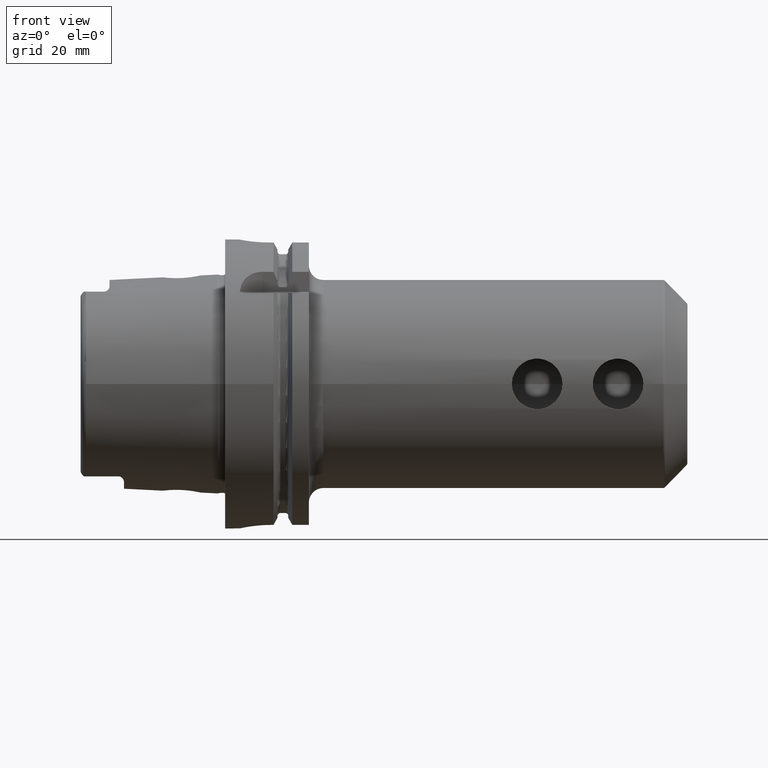
[diagram: clean part render]
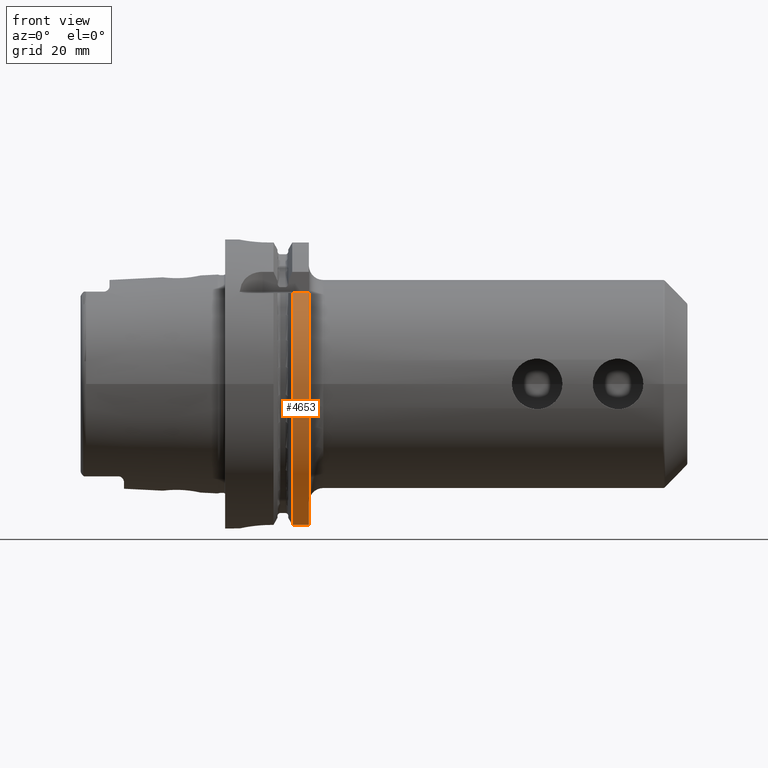
[diagram: same view with one face highlighted and labeled with its STEP entity id]
A machine part, front view. The second image highlights one B-rep face of the part: STEP entity #4653.
In plain terms, the highlighted cylindrical surface (partial cylindrical patch) has radius 50 mm, axis along (1, 0, 0).
Its self-contained STEP definition (entity closure, byte-faithful):
#1123=DIRECTION('',(1.E0,0.E0,0.E0));
#1124=VECTOR('',#1123,5.752404735808E0);
#1125=CARTESIAN_POINT('',(2.324759526419E1,-3.882975663071E1,3.15E1));
#1126=LINE('',#1125,#1124);
#1127=CARTESIAN_POINT('',(2.9E1,0.E0,0.E0));
#1128=DIRECTION('',(1.E0,0.E0,0.E0));
#1129=DIRECTION('',(0.E0,-7.765951326142E-1,6.3E-1));
#1130=AXIS2_PLACEMENT_3D('',#1127,#1128,#1129);
#1132=DIRECTION('',(1.E0,0.E0,0.E0));
#1133=VECTOR('',#1132,5.752404735808E0);
#1134=CARTESIAN_POINT('',(2.324759526419E1,-1.1E1,-4.877499359303E1));
#1135=LINE('',#1134,#1133);
#1677=CARTESIAN_POINT('',(2.324759526419E1,0.E0,0.E0));
#1678=DIRECTION('',(1.E0,0.E0,0.E0));
#1679=DIRECTION('',(0.E0,-7.765951326142E-1,6.3E-1));
#1680=AXIS2_PLACEMENT_3D('',#1677,#1678,#1679);
#3334=CARTESIAN_POINT('',(2.324759526419E1,-1.1E1,-4.877499359303E1));
#3335=CARTESIAN_POINT('',(2.9E1,-1.1E1,-4.877499359303E1));
#3336=VERTEX_POINT('',#3334);
#3337=VERTEX_POINT('',#3335);
#3384=CARTESIAN_POINT('',(2.324759526419E1,-3.882975663071E1,3.15E1));
#3385=CARTESIAN_POINT('',(2.9E1,-3.882975663071E1,3.15E1));
#3386=VERTEX_POINT('',#3384);
#3387=VERTEX_POINT('',#3385);
#4640=CARTESIAN_POINT('',(-5.395E1,0.E0,0.E0));
#4641=DIRECTION('',(1.E0,0.E0,0.E0));
#4642=DIRECTION('',(0.E0,-1.E0,0.E0));
#4643=AXIS2_PLACEMENT_3D('',#4640,#4641,#4642);
#4644=CYLINDRICAL_SURFACE('',#4643,5.E1);
#4645=ORIENTED_EDGE('',*,*,#4604,.T.);
#4646=ORIENTED_EDGE('',*,*,#4586,.T.);
#4648=ORIENTED_EDGE('',*,*,#4647,.F.);
#4650=ORIENTED_EDGE('',*,*,#4649,.F.);
#4651=EDGE_LOOP('',(#4645,#4646,#4648,#4650));
#4652=FACE_OUTER_BOUND('',#4651,.F.);
#4653=ADVANCED_FACE('',(#4652),#4644,.T.);
#1131=CIRCLE('',#1130,5.E1);
#1681=CIRCLE('',#1680,5.E1);
#4586=EDGE_CURVE('',#3387,#3337,#1131,.T.);
#4604=EDGE_CURVE('',#3386,#3387,#1126,.T.);
#4647=EDGE_CURVE('',#3336,#3337,#1135,.T.);
#4649=EDGE_CURVE('',#3386,#3336,#1681,.T.);